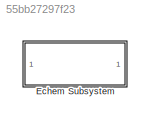
MODEL slx_55bb27297f23
KIND library
CONFIG AbsTol = auto
CONFIG EnableMultiTasking = off
CONFIG FixedStep = auto
CONFIG MaxStep = auto
CONFIG MinStep = auto
CONFIG RelTol = 1e-3
CONFIG SampleTimeConstraint = Unconstrained
CONFIG SolverName = VariableStepAuto
CONFIG StartTime = 0.0
CONFIG StopTime = 10.0
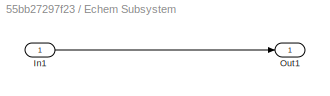
BLOCK [SubSystem] Echem Subsystem
BLOCK [Inport] Echem Subsystem/In1
BLOCK [Outport] Echem Subsystem/Out1
LINE Echem Subsystem/In1:1 -> Echem Subsystem/Out1:1
